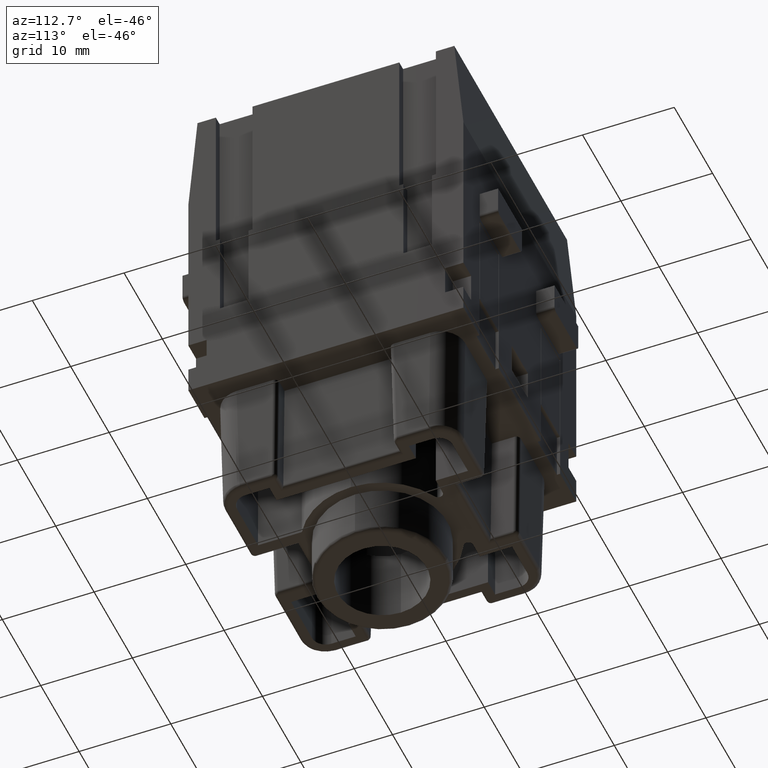
[diagram: clean part render]
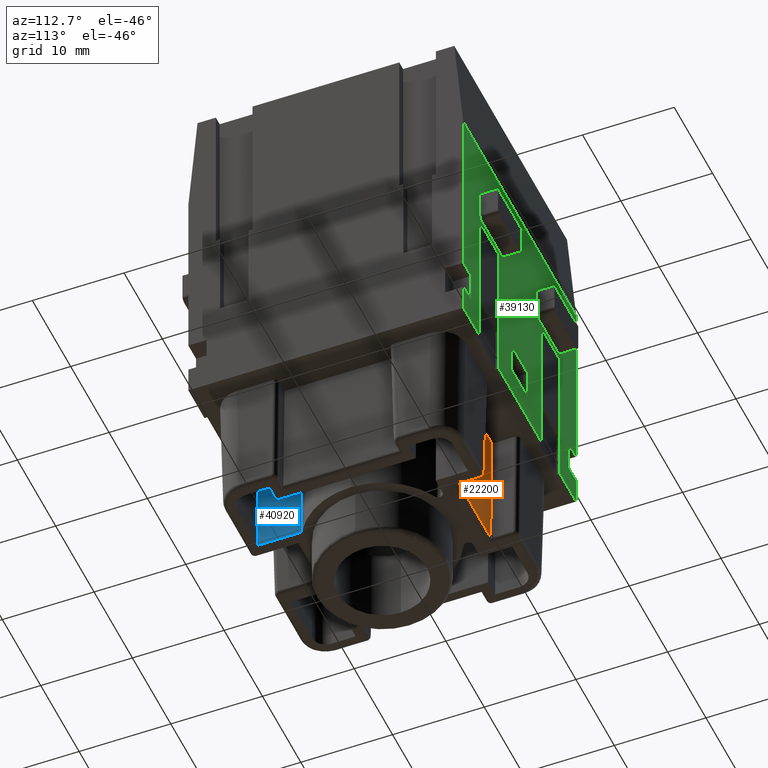
[diagram: same view with three faces highlighted in distinct colors, each labeled with its STEP entity id]
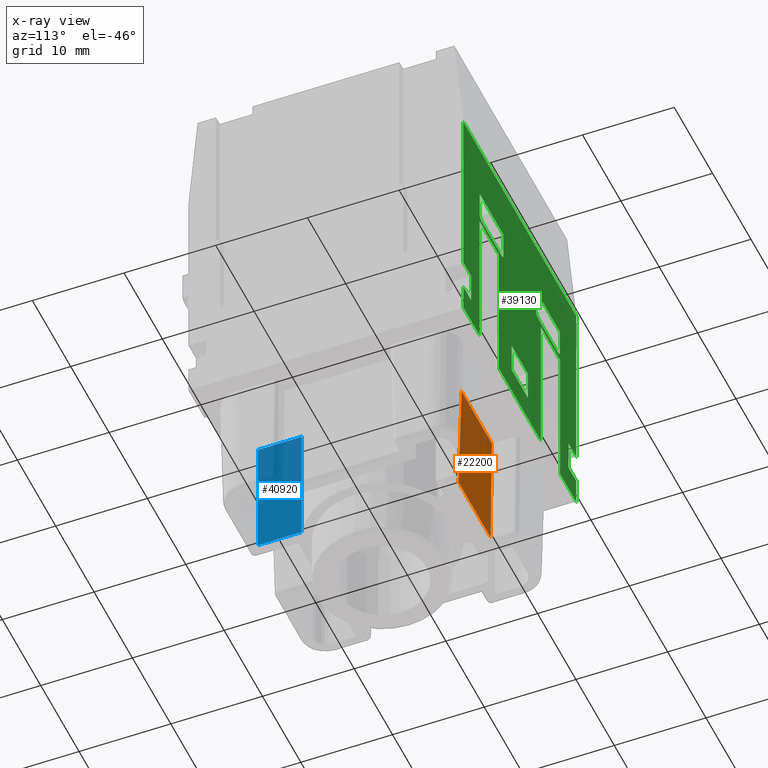
[diagram: x-ray of the same camera — body ghosted, the three highlighted faces saturated]
A machine part, auxiliary view with three faces highlighted in distinct colors.
The next image is the same camera in x-ray (body ghosted, the three faces saturated) — at least one of them is partly hidden behind the body in this view.
Their STEP definitions:

[orange] entity #22200 — the highlighted planar face has unit normal (-0, 0.9998, -0.0175).
#11460=CARTESIAN_POINT('',(37.397735,57.757183,-6.70000000000001));
#11470=VERTEX_POINT('',#11460);
#11520=CARTESIAN_POINT('',(37.4029715194785,58.057183,-6.69476348052154)
);
#11530=DIRECTION('',(-0.0174497491606827,-0.999695459881888,
-0.0174497491606828));
#11540=VECTOR('',#11530,1.);
#11550=LINE('',#11520,#11540);
#11560=CARTESIAN_POINT('',(37.165430320011,44.4484567967814,
-6.93230467998906));
#11570=VERTEX_POINT('',#11560);
#11580=EDGE_CURVE('',#11470,#11570,#11550,.T.);
#21900=CARTESIAN_POINT('',(43.8748260731334,57.757183,-6.70000000000001)
);
#21910=DIRECTION('',(-2.22010786456204E-16,-0.0174524064372836,
0.999847695156391));
#21920=DIRECTION('',(1.,-2.46519032881566E-32,2.22044604925031E-16));
#21930=AXIS2_PLACEMENT_3D('',#21900,#21910,#21920);
#21940=PLANE('',#21930);
#21950=CARTESIAN_POINT('',(45.2924984805215,58.057183,-6.69476348052154)
);
#21960=DIRECTION('',(0.0174497491606827,-0.999695459881888,
-0.0174497491606828));
#21970=VECTOR('',#21960,1.);
#21980=LINE('',#21950,#21970);
#21990=CARTESIAN_POINT('',(45.297735,57.757183,-6.7));
#22000=VERTEX_POINT('',#21990);
#22010=CARTESIAN_POINT('',(45.5300396799891,44.4484567967814,
-6.93230467998906));
#22020=VERTEX_POINT('',#22010);
#22030=EDGE_CURVE('',#22000,#22020,#21980,.T.);
#22040=ORIENTED_EDGE('',*,*,#22030,.F.);
#22050=CARTESIAN_POINT('',(27.154278547698,44.4484567967814,
-6.93230467998906));
#22060=DIRECTION('',(-1.,2.46519032881566E-32,-2.22044604925031E-16));
#22070=VECTOR('',#22060,1.);
#22080=LINE('',#22050,#22070);
#22090=EDGE_CURVE('',#22020,#11570,#22080,.T.);
#22100=ORIENTED_EDGE('',*,*,#22090,.F.);
#22110=ORIENTED_EDGE('',*,*,#11580,.T.);
#22120=CARTESIAN_POINT('',(27.154278547698,57.757183,-6.70000000000001))
;
#22130=DIRECTION('',(-1.,2.46519032881566E-32,-2.22044604925031E-16));
#22140=VECTOR('',#22130,1.);
#22150=LINE('',#22120,#22140);
#22160=EDGE_CURVE('',#22000,#11470,#22150,.T.);
#22170=ORIENTED_EDGE('',*,*,#22160,.T.);
#22180=EDGE_LOOP('',(#22170,#22110,#22100,#22040));
#22190=FACE_OUTER_BOUND('',#22180,.T.);
#22200=ADVANCED_FACE('',(#22190),#21940,.T.);

[blue] entity #40920 — the highlighted planar face has unit normal (-1, 0, -0).
#40530=CARTESIAN_POINT('',(37.047735,57.7571830000001,-23.9821208821644)
);
#40540=DIRECTION('',(1.,-4.91054061867018E-31,2.44929359829471E-16));
#40550=DIRECTION('',(2.44929359829471E-16,-4.91288630944715E-15,-1.));
#40560=AXIS2_PLACEMENT_3D('',#40530,#40540,#40550);
#40570=PLANE('',#40560);
#40580=CARTESIAN_POINT('',(37.047735,57.7571830000002,-4.55868960884607)
);
#40590=DIRECTION('',(2.4492935982947E-16,-4.91288630944715E-15,-1.));
#40600=VECTOR('',#40590,1.);
#40610=LINE('',#40580,#40600);
#40620=CARTESIAN_POINT('',(37.047735,57.7571830000001,-23.9821208821643)
);
#40630=VERTEX_POINT('',#40620);
#40640=CARTESIAN_POINT('',(37.047735,57.7571830000001,-28.75));
#40650=VERTEX_POINT('',#40640);
#40660=EDGE_CURVE('',#40630,#40650,#40610,.T.);
#40670=ORIENTED_EDGE('',*,*,#40660,.T.);
#40680=CARTESIAN_POINT('',(37.047735,57.7571830000001,-23.9821208821644)
);
#40690=DIRECTION('',(-1.69436416055488E-30,-1.,4.91288630944715E-15));
#40700=VECTOR('',#40690,1.);
#40710=LINE('',#40680,#40700);
#40720=CARTESIAN_POINT('',(37.047735,43.957183,-23.9821208821643));
#40730=VERTEX_POINT('',#40720);
#40740=EDGE_CURVE('',#40630,#40730,#40710,.T.);
#40750=ORIENTED_EDGE('',*,*,#40740,.F.);
#40760=CARTESIAN_POINT('',(37.047735,43.957183,-4.55868960884608));
#40770=DIRECTION('',(-2.44929359829471E-16,-1.11022302462516E-16,1.));
#40780=VECTOR('',#40770,1.);
#40790=LINE('',#40760,#40780);
#40800=CARTESIAN_POINT('',(37.047735,43.957183,-28.7499999999999));
#40810=VERTEX_POINT('',#40800);
#40820=EDGE_CURVE('',#40810,#40730,#40790,.T.);
#40830=ORIENTED_EDGE('',*,*,#40820,.T.);
#40840=CARTESIAN_POINT('',(37.047735,58.057183,-28.75));
#40850=DIRECTION('',(1.57772181044202E-30,1.,-4.91288630944715E-15));
#40860=VECTOR('',#40850,1.);
#40870=LINE('',#40840,#40860);
#40880=EDGE_CURVE('',#40810,#40650,#40870,.T.);
#40890=ORIENTED_EDGE('',*,*,#40880,.F.);
#40900=EDGE_LOOP('',(#40890,#40830,#40750,#40670));
#40910=FACE_OUTER_BOUND('',#40900,.T.);
#40920=ADVANCED_FACE('',(#40910),#40570,.F.);

[green] entity #39130 — the highlighted planar face has unit normal (-0, 1, -0).
#1630=CARTESIAN_POINT('',(35.847735,74.2571830000002,-2.00000000000001))
;
#1640=VERTEX_POINT('',#1630);
#1670=CARTESIAN_POINT('',(35.847735,58.057183,-2.00000000000001));
#1680=DIRECTION('',(-3.85956360855202E-31,1.,1.22464679914735E-16));
#1690=VECTOR('',#1680,1.);
#1700=LINE('',#1670,#1690);
#1710=CARTESIAN_POINT('',(35.847735,57.757183,-2.00000000000001));
#1720=VERTEX_POINT('',#1710);
#1730=EDGE_CURVE('',#1720,#1640,#1700,.T.);
#10590=CARTESIAN_POINT('',(51.797735,75.257183,-2.));
#10600=VERTEX_POINT('',#10590);
#10630=CARTESIAN_POINT('',(51.297735,75.257183,-2.));
#10640=DIRECTION('',(1.22464679914735E-16,1.22464679914735E-16,-1.));
#10650=DIRECTION('',(1.,-1.35963107344689E-32,1.22464679914735E-16));
#10660=AXIS2_PLACEMENT_3D('',#10630,#10640,#10650);
#10670=CIRCLE('',#10660,0.5);
#10680=CARTESIAN_POINT('',(51.297735,74.757183,-2.));
#10690=VERTEX_POINT('',#10680);
#10700=EDGE_CURVE('',#10600,#10690,#10670,.T.);
#12610=CARTESIAN_POINT('',(37.097735,75.257183,-2.00000000000001));
#12620=VERTEX_POINT('',#12610);
#12650=CARTESIAN_POINT('',(36.597735,75.257183,-2.00000000000001));
#12660=DIRECTION('',(1.22464679914735E-16,1.22464679914735E-16,-1.));
#12670=DIRECTION('',(1.,-1.35963107344689E-32,1.22464679914735E-16));
#12680=AXIS2_PLACEMENT_3D('',#12650,#12660,#12670);
#12690=CIRCLE('',#12680,0.5);
#12700=CARTESIAN_POINT('',(36.597735,74.757183,-2.00000000000001));
#12710=VERTEX_POINT('',#12700);
#12720=EDGE_CURVE('',#12620,#12710,#12690,.T.);
#20660=CARTESIAN_POINT('',(30.847735,74.2571830000002,-2.00000000000001)
);
#20670=VERTEX_POINT('',#20660);
#20700=CARTESIAN_POINT('',(27.154278547698,74.2571830000002,
-2.00000000000001));
#20710=DIRECTION('',(-1.,2.47789391971957E-31,-1.22464679914735E-16));
#20720=VECTOR('',#20710,1.);
#20730=LINE('',#20700,#20720);
#20740=EDGE_CURVE('',#1640,#20670,#20730,.T.);
#25850=CARTESIAN_POINT('',(31.397735,75.257183,-2.00000000000001));
#25860=DIRECTION('',(-1.22464679914735E-16,-1.22464679914735E-16,1.));
#25870=DIRECTION('',(-1.,1.35963107344689E-32,-1.22464679914735E-16));
#25880=AXIS2_PLACEMENT_3D('',#25850,#25860,#25870);
#25890=CIRCLE('',#25880,0.5);
#25900=CARTESIAN_POINT('',(30.897735,75.257183,-2.00000000000001));
#25910=VERTEX_POINT('',#25900);
#25920=CARTESIAN_POINT('',(31.397735,74.757183,-2.00000000000001));
#25930=VERTEX_POINT('',#25920);
#25940=EDGE_CURVE('',#25910,#25930,#25890,.T.);
#27110=CARTESIAN_POINT('',(54.047735,64.2571830000003,-2.00000000000001)
);
#27120=VERTEX_POINT('',#27110);
#27290=CARTESIAN_POINT('',(54.047735,60.757183,-2.00000000000001));
#27300=VERTEX_POINT('',#27290);
#27330=CARTESIAN_POINT('',(54.047735,58.057183,-2.00000000000001));
#27340=DIRECTION('',(-1.4637067577343E-32,1.,1.22464679914735E-16));
#27350=VECTOR('',#27340,1.);
#27360=LINE('',#27330,#27350);
#27370=EDGE_CURVE('',#27300,#27120,#27360,.T.);
#28220=CARTESIAN_POINT('',(45.597735,75.257183,-2.00000000000001));
#28230=VERTEX_POINT('',#28220);
#28260=CARTESIAN_POINT('',(45.597735,58.057183,-2.00000000000001));
#28270=DIRECTION('',(-1.4637067577343E-32,1.,1.22464679914735E-16));
#28280=VECTOR('',#28270,1.);
#28290=LINE('',#28260,#28280);
#28300=CARTESIAN_POINT('',(45.597735,78.257183,-2.));
#28310=VERTEX_POINT('',#28300);
#28320=EDGE_CURVE('',#28230,#28310,#28290,.T.);
#36610=CARTESIAN_POINT('',(42.0517002534911,60.757183,-2.00000000000001)
);
#36620=DIRECTION('',(1.,1.10555925536877E-32,1.22464679914735E-16));
#36630=VECTOR('',#36620,1.);
#36640=LINE('',#36610,#36630);
#36650=CARTESIAN_POINT('',(56.047735,60.757183,-2.00000000000001));
#36660=VERTEX_POINT('',#36650);
#36670=EDGE_CURVE('',#27300,#36660,#36640,.T.);
#36870=CARTESIAN_POINT('',(36.6974441754127,58.9645529342165,
-2.00000000000001));
#36880=DIRECTION('',(-1.22464679914735E-16,-1.22464679914735E-16,1.));
#36890=DIRECTION('',(-1.,-1.10555925536877E-32,-1.22464679914735E-16));
#36900=AXIS2_PLACEMENT_3D('',#36870,#36880,#36890);
#36910=PLANE('',#36900);
#36920=CARTESIAN_POINT('',(27.154278547698,64.2571830000003,
-2.00000000000001));
#36930=DIRECTION('',(-1.,-3.99233797359098E-30,-1.22464679914735E-16));
#36940=VECTOR('',#36930,1.);
#36950=LINE('',#36920,#36940);
#36960=CARTESIAN_POINT('',(43.447735,64.2571830000003,-2.00000000000001)
);
#36970=VERTEX_POINT('',#36960);
#36980=CARTESIAN_POINT('',(39.247735,64.2571830000003,-2.00000000000001)
);
#36990=VERTEX_POINT('',#36980);
#37000=EDGE_CURVE('',#36970,#36990,#36950,.T.);
#37010=ORIENTED_EDGE('',*,*,#37000,.F.);
#37020=CARTESIAN_POINT('',(39.247735,58.057183,-1.99999999999999));
#37030=DIRECTION('',(3.94430452610506E-31,1.,-2.40665319221843E-15));
#37040=VECTOR('',#37030,1.);
#37050=LINE('',#37020,#37040);
#37060=CARTESIAN_POINT('',(39.247735,60.7571830000002,-2.00000000000001)
);
#37070=VERTEX_POINT('',#37060);
#37080=EDGE_CURVE('',#37070,#36990,#37050,.T.);
#37090=ORIENTED_EDGE('',*,*,#37080,.T.);
#37100=CARTESIAN_POINT('',(27.154278547698,60.757183,-2.00000000000001))
;
#37110=DIRECTION('',(1.,1.10555925536877E-32,1.22464679914735E-16));
#37120=VECTOR('',#37110,1.);
#37130=LINE('',#37100,#37120);
#37140=CARTESIAN_POINT('',(43.447735,60.7571830000002,-2.00000000000001)
);
#37150=VERTEX_POINT('',#37140);
#37160=EDGE_CURVE('',#37070,#37150,#37130,.T.);
#37170=ORIENTED_EDGE('',*,*,#37160,.F.);
#37180=CARTESIAN_POINT('',(43.447735,58.057183,-1.99999999999999));
#37190=DIRECTION('',(-3.94430452610506E-31,-1.,2.40665319221843E-15));
#37200=VECTOR('',#37190,1.);
#37210=LINE('',#37180,#37200);
#37220=EDGE_CURVE('',#36970,#37150,#37210,.T.);
#37230=ORIENTED_EDGE('',*,*,#37220,.T.);
#37240=EDGE_LOOP('',(#37230,#37170,#37090,#37010));
#37250=FACE_BOUND('',#37240,.T.);
#37260=ORIENTED_EDGE('',*,*,#28320,.T.);
#37270=CARTESIAN_POINT('',(46.097735,75.257183,-2.));
#37280=DIRECTION('',(-1.22464679914735E-16,-1.22464679914735E-16,1.));
#37290=DIRECTION('',(-1.,1.35963107344689E-32,-1.22464679914735E-16));
#37300=AXIS2_PLACEMENT_3D('',#37270,#37280,#37290);
#37310=CIRCLE('',#37300,0.5);
#37320=CARTESIAN_POINT('',(46.097735,74.757183,-2.00000000000001));
#37330=VERTEX_POINT('',#37320);
#37340=EDGE_CURVE('',#28230,#37330,#37310,.T.);
#37350=ORIENTED_EDGE('',*,*,#37340,.F.);
#37360=CARTESIAN_POINT('',(27.154278547698,74.757183,-2.00000000000001))
;
#37370=DIRECTION('',(1.,1.10555925536877E-32,1.22464679914735E-16));
#37380=VECTOR('',#37370,1.);
#37390=LINE('',#37360,#37380);
#37400=EDGE_CURVE('',#37330,#10690,#37390,.T.);
#37410=ORIENTED_EDGE('',*,*,#37400,.F.);
#37420=ORIENTED_EDGE('',*,*,#10700,.T.);
#37430=CARTESIAN_POINT('',(51.797735,58.057183,-2.00000000000001));
#37440=DIRECTION('',(1.4637067577343E-32,-1.,-1.22464679914735E-16));
#37450=VECTOR('',#37440,1.);
#37460=LINE('',#37430,#37450);
#37470=CARTESIAN_POINT('',(51.797735,78.257183,-2.));
#37480=VERTEX_POINT('',#37470);
#37490=EDGE_CURVE('',#37480,#10600,#37460,.T.);
#37500=ORIENTED_EDGE('',*,*,#37490,.T.);
#37510=CARTESIAN_POINT('',(27.154278547698,78.257183,-2.00000000000001))
;
#37520=DIRECTION('',(-1.,-2.3381544197766E-32,-1.22464679914735E-16));
#37530=VECTOR('',#37520,1.);
#37540=LINE('',#37510,#37530);
#37550=EDGE_CURVE('',#37480,#28310,#37540,.T.);
#37560=ORIENTED_EDGE('',*,*,#37550,.F.);
#37570=EDGE_LOOP('',(#37560,#37500,#37420,#37410,#37350,#37260));
#37580=FACE_BOUND('',#37570,.T.);
#37590=CARTESIAN_POINT('',(27.154278547698,78.257183,-2.00000000000001))
;
#37600=DIRECTION('',(-1.,-2.3381544197766E-32,-1.22464679914735E-16));
#37610=VECTOR('',#37600,1.);
#37620=LINE('',#37590,#37610);
#37630=CARTESIAN_POINT('',(37.097735,78.257183,-2.00000000000001));
#37640=VERTEX_POINT('',#37630);
#37650=CARTESIAN_POINT('',(30.897735,78.257183,-2.00000000000001));
#37660=VERTEX_POINT('',#37650);
#37670=EDGE_CURVE('',#37640,#37660,#37620,.T.);
#37680=ORIENTED_EDGE('',*,*,#37670,.F.);
#37690=CARTESIAN_POINT('',(30.897735,58.057183,-2.00000000000001));
#37700=DIRECTION('',(-1.4637067577343E-32,1.,1.22464679914735E-16));
#37710=VECTOR('',#37700,1.);
#37720=LINE('',#37690,#37710);
#37730=EDGE_CURVE('',#25910,#37660,#37720,.T.);
#37740=ORIENTED_EDGE('',*,*,#37730,.T.);
#37750=ORIENTED_EDGE('',*,*,#25940,.F.);
#37760=CARTESIAN_POINT('',(27.154278547698,74.757183,-2.00000000000001))
;
#37770=DIRECTION('',(1.,1.10555925536877E-32,1.22464679914735E-16));
#37780=VECTOR('',#37770,1.);
#37790=LINE('',#37760,#37780);
#37800=EDGE_CURVE('',#25930,#12710,#37790,.T.);
#37810=ORIENTED_EDGE('',*,*,#37800,.F.);
#37820=ORIENTED_EDGE('',*,*,#12720,.T.);
#37830=CARTESIAN_POINT('',(37.097735,58.057183,-2.00000000000001));
#37840=DIRECTION('',(1.4637067577343E-32,-1.,-1.22464679914735E-16));
#37850=VECTOR('',#37840,1.);
#37860=LINE('',#37830,#37850);
#37870=EDGE_CURVE('',#37640,#12620,#37860,.T.);
#37880=ORIENTED_EDGE('',*,*,#37870,.T.);
#37890=EDGE_LOOP('',(#37880,#37820,#37810,#37750,#37740,#37680));
#37900=FACE_BOUND('',#37890,.T.);
#37910=ORIENTED_EDGE('',*,*,#1730,.F.);
#37920=ORIENTED_EDGE('',*,*,#20740,.F.);
#37930=CARTESIAN_POINT('',(30.847735,58.057183,-2.00000000000001));
#37940=DIRECTION('',(-3.85956360855202E-31,1.,1.22464679914735E-16));
#37950=VECTOR('',#37940,1.);
#37960=LINE('',#37930,#37950);
#37970=CARTESIAN_POINT('',(30.847735,57.757183,-2.00000000000001));
#37980=VERTEX_POINT('',#37970);
#37990=EDGE_CURVE('',#37980,#20670,#37960,.T.);
#38000=ORIENTED_EDGE('',*,*,#37990,.T.);
#38010=CARTESIAN_POINT('',(27.154278547698,57.757183,-2.00000000000001))
;
#38020=DIRECTION('',(1.,-1.35963107344689E-32,1.22464679914735E-16));
#38030=VECTOR('',#38020,1.);
#38040=LINE('',#38010,#38030);
#38050=CARTESIAN_POINT('',(26.647735,57.757183,-2.00000000000001));
#38060=VERTEX_POINT('',#38050);
#38070=EDGE_CURVE('',#38060,#37980,#38040,.T.);
#38080=ORIENTED_EDGE('',*,*,#38070,.T.);
#38090=CARTESIAN_POINT('',(26.647735,79.057183,-2.00000000000001));
#38100=DIRECTION('',(0.,-1.,-1.14423774522197E-17));
#38110=VECTOR('',#38100,1.);
#38120=LINE('',#38090,#38110);
#38130=CARTESIAN_POINT('',(26.647735,60.757183,-2.00000000000001));
#38140=VERTEX_POINT('',#38130);
#38150=EDGE_CURVE('',#38140,#38060,#38120,.T.);
#38160=ORIENTED_EDGE('',*,*,#38150,.T.);
#38170=CARTESIAN_POINT('',(42.0517002534911,60.757183,-2.00000000000001)
);
#38180=DIRECTION('',(1.,1.10555925536877E-32,1.22464679914735E-16));
#38190=VECTOR('',#38180,1.);
#38200=LINE('',#38170,#38190);
#38210=CARTESIAN_POINT('',(28.647735,60.757183,-2.00000000000001));
#38220=VERTEX_POINT('',#38210);
#38230=EDGE_CURVE('',#38140,#38220,#38200,.T.);
#38240=ORIENTED_EDGE('',*,*,#38230,.F.);
#38250=CARTESIAN_POINT('',(28.647735,58.057183,-2.00000000000001));
#38260=DIRECTION('',(-1.4637067577343E-32,1.,1.22464679914735E-16));
#38270=VECTOR('',#38260,1.);
#38280=LINE('',#38250,#38270);
#38290=CARTESIAN_POINT('',(28.647735,64.2571830000003,-2.00000000000001)
);
#38300=VERTEX_POINT('',#38290);
#38310=EDGE_CURVE('',#38220,#38300,#38280,.T.);
#38320=ORIENTED_EDGE('',*,*,#38310,.F.);
#38330=CARTESIAN_POINT('',(27.154278547698,64.2571830000003,
-2.00000000000001));
#38340=DIRECTION('',(-1.,-3.99233797359098E-30,-1.22464679914735E-16));
#38350=VECTOR('',#38340,1.);
#38360=LINE('',#38330,#38350);
#38370=CARTESIAN_POINT('',(26.647735,64.2571830000003,-2.00000000000001)
);
#38380=VERTEX_POINT('',#38370);
#38390=EDGE_CURVE('',#38300,#38380,#38360,.T.);
#38400=ORIENTED_EDGE('',*,*,#38390,.F.);
#38410=CARTESIAN_POINT('',(26.647735,58.057183,-2.00000000000001));
#38420=DIRECTION('',(0.,1.,1.22464679914735E-16));
#38430=VECTOR('',#38420,1.);
#38440=LINE('',#38410,#38430);
#38450=CARTESIAN_POINT('',(26.647735,84.6271306972378,-2.00000000000001)
);
#38460=VERTEX_POINT('',#38450);
#38470=EDGE_CURVE('',#38380,#38460,#38440,.T.);
#38480=ORIENTED_EDGE('',*,*,#38470,.F.);
#38490=CARTESIAN_POINT('',(27.154278547698,84.6271306972378,
-2.00000000000001));
#38500=DIRECTION('',(1.,-1.39977769666635E-15,1.22464679914735E-16));
#38510=VECTOR('',#38500,1.);
#38520=LINE('',#38490,#38510);
#38530=CARTESIAN_POINT('',(56.047735,84.6271306972378,-2.));
#38540=VERTEX_POINT('',#38530);
#38550=EDGE_CURVE('',#38460,#38540,#38520,.T.);
#38560=ORIENTED_EDGE('',*,*,#38550,.F.);
#38570=CARTESIAN_POINT('',(56.047735,58.057183,-2.00000000000001));
#38580=DIRECTION('',(-3.85956360855202E-31,1.,1.22464679914735E-16));
#38590=VECTOR('',#38580,1.);
#38600=LINE('',#38570,#38590);
#38610=CARTESIAN_POINT('',(56.047735,64.2571830000003,-2.));
#38620=VERTEX_POINT('',#38610);
#38630=EDGE_CURVE('',#38620,#38540,#38600,.T.);
#38640=ORIENTED_EDGE('',*,*,#38630,.T.);
#38650=CARTESIAN_POINT('',(27.154278547698,64.2571830000003,
-2.00000000000001));
#38660=DIRECTION('',(-1.,-3.99233797359098E-30,-1.22464679914735E-16));
#38670=VECTOR('',#38660,1.);
#38680=LINE('',#38650,#38670);
#38690=EDGE_CURVE('',#38620,#27120,#38680,.T.);
#38700=ORIENTED_EDGE('',*,*,#38690,.F.);
#38710=ORIENTED_EDGE('',*,*,#27370,.T.);
#38720=ORIENTED_EDGE('',*,*,#36670,.F.);
#38730=CARTESIAN_POINT('',(56.047735,79.057183,-2.00000000000001));
#38740=DIRECTION('',(0.,1.,1.14423774522197E-17));
#38750=VECTOR('',#38740,1.);
#38760=LINE('',#38730,#38750);
#38770=CARTESIAN_POINT('',(56.047735,57.757183,-2.00000000000001));
#38780=VERTEX_POINT('',#38770);
#38790=EDGE_CURVE('',#38780,#36660,#38760,.T.);
#38800=ORIENTED_EDGE('',*,*,#38790,.T.);
#38810=CARTESIAN_POINT('',(51.847735,57.757183,-2.00000000000001));
#38820=VERTEX_POINT('',#38810);
#38830=EDGE_CURVE('',#38820,#38780,#38040,.T.);
#38840=ORIENTED_EDGE('',*,*,#38830,.T.);
#38850=CARTESIAN_POINT('',(51.847735,58.057183,-2.00000000000002));
#38860=DIRECTION('',(0.,1.,1.22464679914735E-16));
#38870=VECTOR('',#38860,1.);
#38880=LINE('',#38850,#38870);
#38890=CARTESIAN_POINT('',(51.847735,74.257183,-2.));
#38900=VERTEX_POINT('',#38890);
#38910=EDGE_CURVE('',#38820,#38900,#38880,.T.);
#38920=ORIENTED_EDGE('',*,*,#38910,.F.);
#38930=CARTESIAN_POINT('',(27.2133893385884,74.257183,-2.00000000000002)
);
#38940=DIRECTION('',(-1.,1.2703590903906E-33,-1.22464679914735E-16));
#38950=VECTOR('',#38940,1.);
#38960=LINE('',#38930,#38950);
#38970=CARTESIAN_POINT('',(46.847735,74.257183,-2.00000000000001));
#38980=VERTEX_POINT('',#38970);
#38990=EDGE_CURVE('',#38900,#38980,#38960,.T.);
#39000=ORIENTED_EDGE('',*,*,#38990,.F.);
#39010=CARTESIAN_POINT('',(46.847735,58.057183,-2.00000000000002));
#39020=DIRECTION('',(-0.,-1.,-1.22464679914735E-16));
#39030=VECTOR('',#39020,1.);
#39040=LINE('',#39010,#39030);
#39050=CARTESIAN_POINT('',(46.847735,57.757183,-2.00000000000001));
#39060=VERTEX_POINT('',#39050);
#39070=EDGE_CURVE('',#38980,#39060,#39040,.T.);
#39080=ORIENTED_EDGE('',*,*,#39070,.F.);
#39090=EDGE_CURVE('',#1720,#39060,#38040,.T.);
#39100=ORIENTED_EDGE('',*,*,#39090,.T.);
#39110=EDGE_LOOP('',(#39100,#39080,#39000,#38920,#38840,#38800,#38720,
#38710,#38700,#38640,#38560,#38480,#38400,#38320,#38240,#38160,#38080,
#38000,#37920,#37910));
#39120=FACE_OUTER_BOUND('',#39110,.T.);
#39130=ADVANCED_FACE('',(#37250,#37580,#37900,#39120),#36910,.T.);